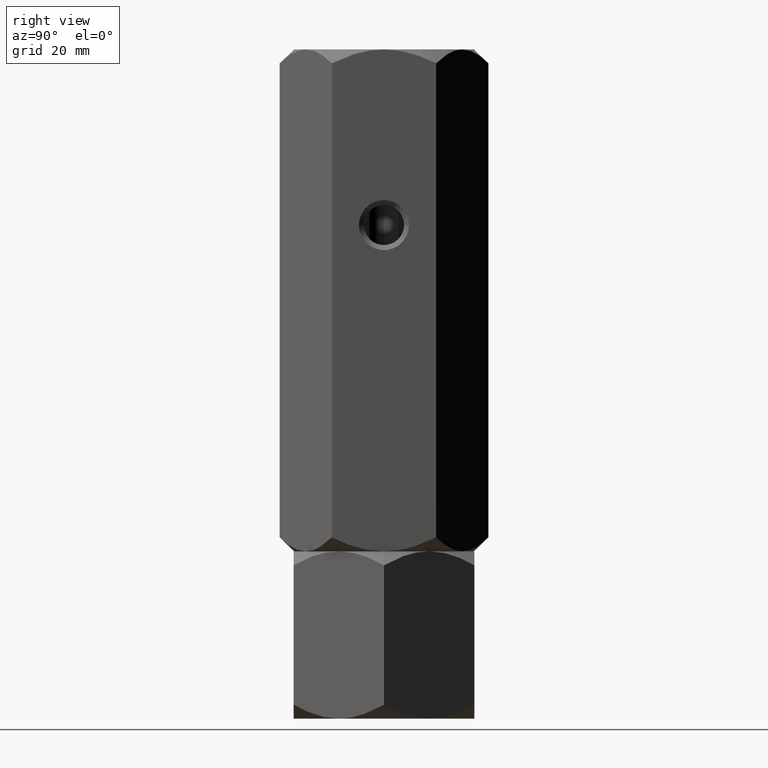
[diagram: clean part render]
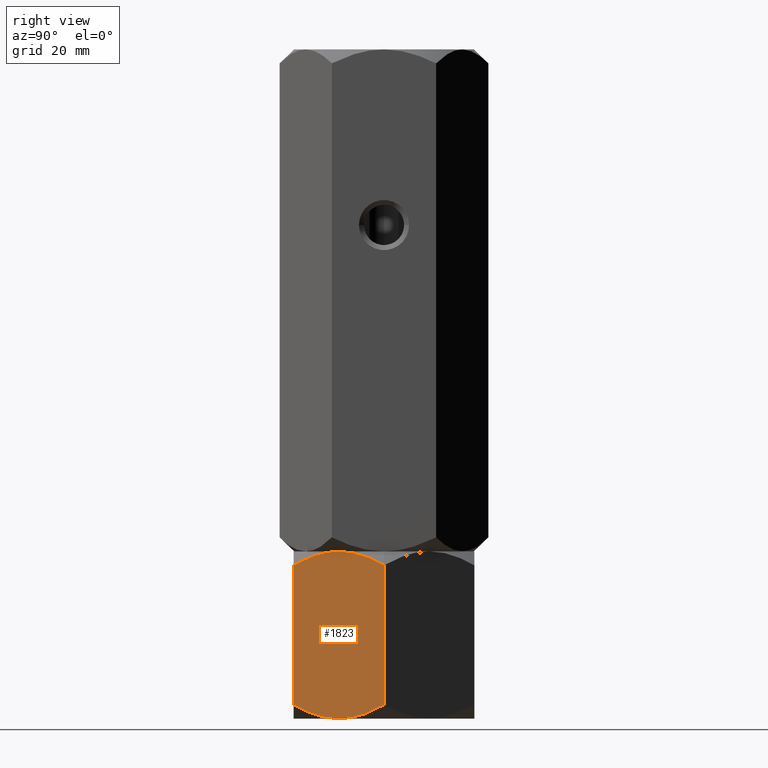
[diagram: same view with one face highlighted and labeled with its STEP entity id]
A machine part, right view. The second image highlights one B-rep face of the part: STEP entity #1823.
In plain terms, the highlighted planar face has unit normal (-0.866, 0.5, 0).
Its self-contained STEP definition (entity closure, byte-faithful):
#1 = CARTESIAN_POINT ( 'NONE',  ( 13.33524813246346952, -12.90267270303527525, 32.79624777750428422 ) ) ;
#27 = CARTESIAN_POINT ( 'NONE',  ( 15.36090870263097230, -9.394125676616233989, 33.33333333333330728 ) ) ;
#51 = DIRECTION ( 'NONE',  ( -0.000000000000000000, -0.000000000000000000, -1.000000000000000000 ) ) ;
#58 = ORIENTED_EDGE ( 'NONE', *, *, #187, .F. ) ;
#137 = CARTESIAN_POINT ( 'NONE',  ( 20.78460969082652809, -4.404509159444062513E-16, 2.784609690826518769 ) ) ;
#171 = CARTESIAN_POINT ( 'NONE',  ( 10.39230484541326227, -18.00000000000000000, 33.33333333333330017 ) ) ;
#187 = EDGE_CURVE ( 'NONE', #1770, #696, #1381, .T. ) ;
#196 = PLANE ( 'NONE',  #1198 ) ;
#303 = B_SPLINE_CURVE_WITH_KNOTS ( 'NONE', 3,
 ( #1273, #1103, #791, #1, #642, #1287, #1702, #826, #27, #501 ),
 .UNSPECIFIED., .F., .F.,
 ( 4, 2, 2, 2, 4 ),
 ( 2.544307986796311447E-07, 0.005386537354063074268, 0.008079678815695273339, 0.009426249546511370273, 0.01077282027732746721 ),
 .UNSPECIFIED. ) ;
#315 = CARTESIAN_POINT ( 'NONE',  ( 13.79618737047370125, -12.10430252359947900, 0.2763959071215842944 ) ) ;
#404 = CARTESIAN_POINT ( 'NONE',  ( 12.04393988858690356, -15.13928418966203182, 1.272574701504241235 ) ) ;
#427 = CARTESIAN_POINT ( 'NONE',  ( 19.13650452186756112, -2.854601888853813385, 1.277383077889869600 ) ) ;
#435 = CARTESIAN_POINT ( 'NONE',  ( 15.81600583360881807, -8.605874323383773117, 8.300922883092144309E-16 ) ) ;
#450 = CARTESIAN_POINT ( 'NONE',  ( 17.38072716576608912, -5.895697476400520110, 33.05693742621171083 ) ) ;
#468 = FACE_OUTER_BOUND ( 'NONE', #914, .T. ) ;
#501 = CARTESIAN_POINT ( 'NONE',  ( 15.58845726811989429, -9.000000000000001776, 33.33333333333330017 ) ) ;
#538 = DIRECTION ( 'NONE',  ( -0.000000000000000000, -0.000000000000000000, -1.000000000000000000 ) ) ;
#550 = ORIENTED_EDGE ( 'NONE', *, *, #745, .F. ) ;
#593 = CARTESIAN_POINT ( 'NONE',  ( 17.40248616759156874, -5.858009779716798704, 0.3405631022552671472 ) ) ;
#598 = CARTESIAN_POINT ( 'NONE',  ( 10.39230484541326227, -18.00000000000000000, 2.784609690826516104 ) ) ;
#642 = CARTESIAN_POINT ( 'NONE',  ( 13.77442836864821629, -12.14199022028320130, 32.99277023107802620 ) ) ;
#696 = VERTEX_POINT ( 'NONE', #1559 ) ;
#718 = VERTEX_POINT ( 'NONE', #1090 ) ;
#745 = EDGE_CURVE ( 'NONE', #1628, #1569, #303, .T. ) ;
#774 = CARTESIAN_POINT ( 'NONE',  ( 20.78460969082652809, 2.339913672068599110E-16, 30.54872364250677919 ) ) ;
#791 = CARTESIAN_POINT ( 'NONE',  ( 12.04041001437222214, -15.14539811114618928, 32.05595025544342747 ) ) ;
#794 = VERTEX_POINT ( 'NONE', #598 ) ;
#803 = CARTESIAN_POINT ( 'NONE',  ( 15.58845726811989429, -9.000000000000001776, 33.33333333333330017 ) ) ;
#826 = CARTESIAN_POINT ( 'NONE',  ( 15.13208409062669446, -9.790461530629873010, 33.31600047685921595 ) ) ;
#845 = DIRECTION ( 'NONE',  ( -0.5000000000000001110, -0.8660254037844385966, 0.000000000000000000 ) ) ;
#873 = CARTESIAN_POINT ( 'NONE',  ( 10.39230484541326227, -18.00000000000000000, 2.784609690826516104 ) ) ;
#914 = EDGE_LOOP ( 'NONE', ( #550, #1188, #1112, #58, #1493, #1247 ) ) ;
#917 = CARTESIAN_POINT ( 'NONE',  ( 16.72971695024924799, -7.023280245922048692, 0.1387225990985750668 ) ) ;
#929 = LINE ( 'NONE', #171, #1572 ) ;
#956 = CARTESIAN_POINT ( 'NONE',  ( 19.97072132548310108, -1.409696000463987353, 31.36261200785025238 ) ) ;
#969 = CARTESIAN_POINT ( 'NONE',  ( 10.39230484541326227, -18.00000000000000000, 33.33333333333330017 ) ) ;
#1043 = CARTESIAN_POINT ( 'NONE',  ( 20.78460969082652809, 0.000000000000000000, 33.33333333333330017 ) ) ;
#1090 = CARTESIAN_POINT ( 'NONE',  ( 20.78460969082652809, 2.339913672068599110E-16, 30.54872364250677919 ) ) ;
#1097 = CARTESIAN_POINT ( 'NONE',  ( 17.84166640377631907, -5.097327296964724752, 0.5370855558290092979 ) ) ;
#1103 = CARTESIAN_POINT ( 'NONE',  ( 11.20713682960488100, -16.58866960374795241, 31.36355562669839614 ) ) ;
#1108 = CARTESIAN_POINT ( 'NONE',  ( 15.58845726811989429, -9.000000000000001776, 0.000000000000000000 ) ) ;
#1112 = ORIENTED_EDGE ( 'NONE', *, *, #1113, .F. ) ;
#1113 = EDGE_CURVE ( 'NONE', #696, #794, #1248, .T. ) ;
#1131 = VECTOR ( 'NONE', #538, 1000.000000000000000 ) ;
#1144 = DIRECTION ( 'NONE',  ( -0.8660254037844385966, 0.5000000000000001110, 0.000000000000000000 ) ) ;
#1188 = ORIENTED_EDGE ( 'NONE', *, *, #1497, .T. ) ;
#1198 = AXIS2_PLACEMENT_3D ( 'NONE', #969, #1144, #845 ) ;
#1208 = EDGE_CURVE ( 'NONE', #1569, #718, #1876, .T. ) ;
#1236 = CARTESIAN_POINT ( 'NONE',  ( 16.49227650070744389, -7.434539168300460688, 33.33333333333330017 ) ) ;
#1242 = CARTESIAN_POINT ( 'NONE',  ( 16.50312530264320543, -7.415748492146457593, 0.08694689011815548429 ) ) ;
#1247 = ORIENTED_EDGE ( 'NONE', *, *, #1208, .F. ) ;
#1248 = B_SPLINE_CURVE_WITH_KNOTS ( 'NONE', 3,
 ( #1108, #1746, #315, #404, #1819, #873 ),
 .UNSPECIFIED., .F., .F.,
 ( 4, 2, 4 ),
 ( 0.01077282027732747414, 0.01612137750481873813, 0.02146993473231000038 ),
 .UNSPECIFIED. ) ;
#1273 = CARTESIAN_POINT ( 'NONE',  ( 10.39230484541326227, -18.00000000000000000, 30.54872364250678274 ) ) ;
#1274 = CARTESIAN_POINT ( 'NONE',  ( 15.58845726811989429, -9.000000000000001776, 33.33333333333330017 ) ) ;
#1287 = CARTESIAN_POINT ( 'NONE',  ( 14.44719758599053705, -10.97671975407795131, 33.19461073423471476 ) ) ;
#1355 = CARTESIAN_POINT ( 'NONE',  ( 15.58845726811989429, -9.000000000000001776, 0.000000000000000000 ) ) ;
#1381 = B_SPLINE_CURVE_WITH_KNOTS ( 'NONE', 3,
 ( #137, #1848, #427, #1097, #593, #917, #1242, #1861, #435, #1355 ),
 .UNSPECIFIED., .F., .F.,
 ( 4, 2, 2, 2, 4 ),
 ( 2.544307986819122044E-07, 0.005386537354063078605, 0.008079678815695276808, 0.009426249546511375477, 0.01077282027732747414 ),
 .UNSPECIFIED. ) ;
#1436 = CARTESIAN_POINT ( 'NONE',  ( 19.13297464765288325, -2.860715810337963738, 32.06075863182904584 ) ) ;
#1493 = ORIENTED_EDGE ( 'NONE', *, *, #2008, .F. ) ;
#1497 = EDGE_CURVE ( 'NONE', #1628, #794, #929, .T. ) ;
#1559 = CARTESIAN_POINT ( 'NONE',  ( 15.58845726811989429, -9.000000000000001776, 0.000000000000000000 ) ) ;
#1569 = VERTEX_POINT ( 'NONE', #803 ) ;
#1572 = VECTOR ( 'NONE', #51, 1000.000000000000000 ) ;
#1628 = VERTEX_POINT ( 'NONE', #1691 ) ;
#1679 = LINE ( 'NONE', #1043, #1131 ) ;
#1691 = CARTESIAN_POINT ( 'NONE',  ( 10.39230484541326227, -18.00000000000000000, 30.54872364250678274 ) ) ;
#1702 = CARTESIAN_POINT ( 'NONE',  ( 14.67378923359658138, -10.58425150785354418, 33.24638644321514391 ) ) ;
#1746 = CARTESIAN_POINT ( 'NONE',  ( 14.68463803553234825, -10.56546083169953754, 1.128247885742727657E-15 ) ) ;
#1770 = VERTEX_POINT ( 'NONE', #2050 ) ;
#1819 = CARTESIAN_POINT ( 'NONE',  ( 11.20619321075668395, -16.59030399953601531, 1.970721325483048458 ) ) ;
#1823 = ADVANCED_FACE ( 'NONE', ( #468 ), #196, .F. ) ;
#1848 = CARTESIAN_POINT ( 'NONE',  ( 19.96977770663490048, -1.411330396252048702, 1.969777706634900483 ) ) ;
#1861 = CARTESIAN_POINT ( 'NONE',  ( 16.04483044561308702, -8.209538469370128766, 0.01733285647409073954 ) ) ;
#1876 = B_SPLINE_CURVE_WITH_KNOTS ( 'NONE', 3,
 ( #1274, #1236, #450, #1436, #956, #774 ),
 .UNSPECIFIED., .F., .F.,
 ( 4, 2, 4 ),
 ( 0.01077282027732746721, 0.01612137750481873466, 0.02146993473231000038 ),
 .UNSPECIFIED. ) ;
#2008 = EDGE_CURVE ( 'NONE', #718, #1770, #1679, .T. ) ;
#2050 = CARTESIAN_POINT ( 'NONE',  ( 20.78460969082652809, -4.404509159444062513E-16, 2.784609690826518769 ) ) ;